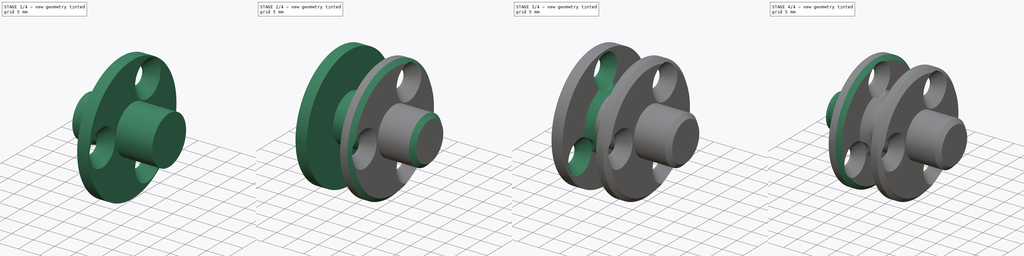
[diagram: build sequence overview — one tinted view per stage of 4, left to right]
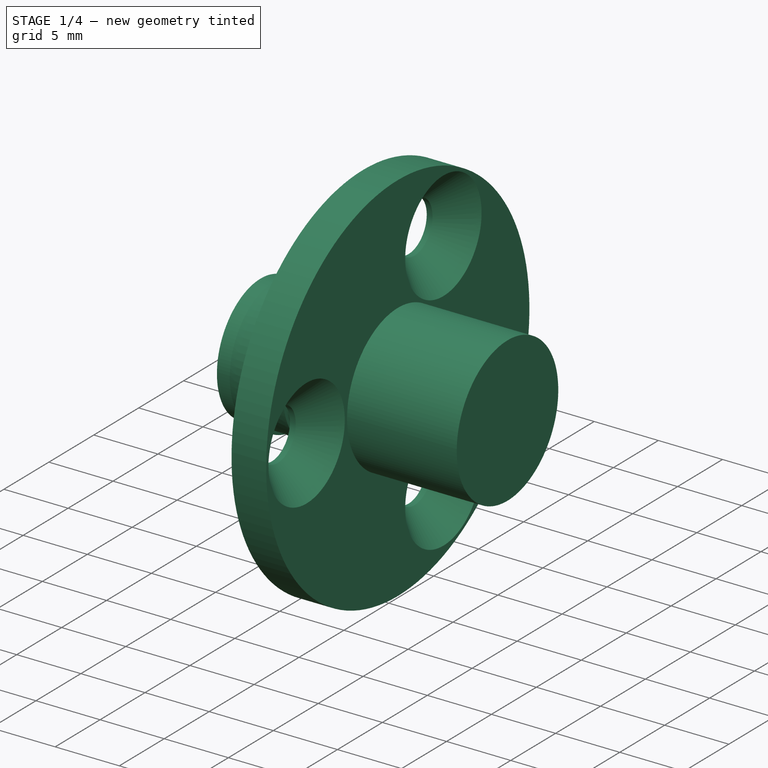
[diagram: stage 1 of 4 — iso view after this stage's code; geometry added in this stage tinted green]
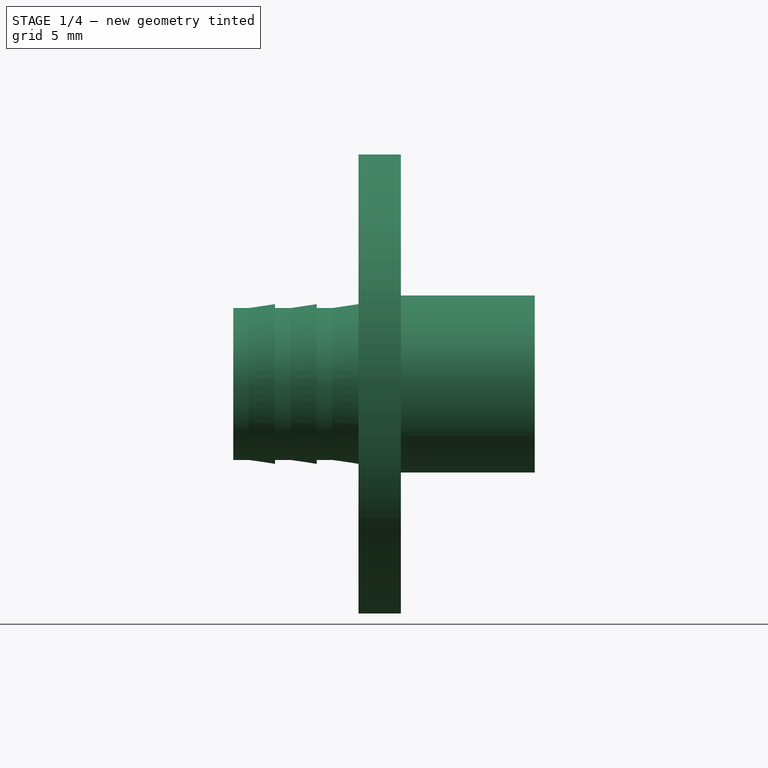
[diagram: stage 1 of 4 — front view after this stage's code; geometry added in this stage tinted green]
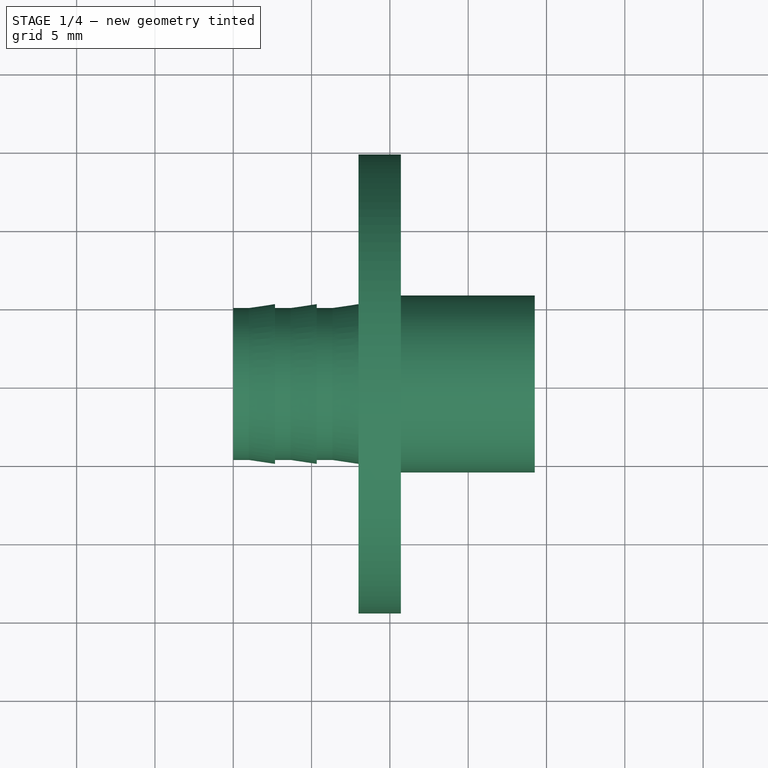
[diagram: stage 1 of 4 — top view after this stage's code; geometry added in this stage tinted green]
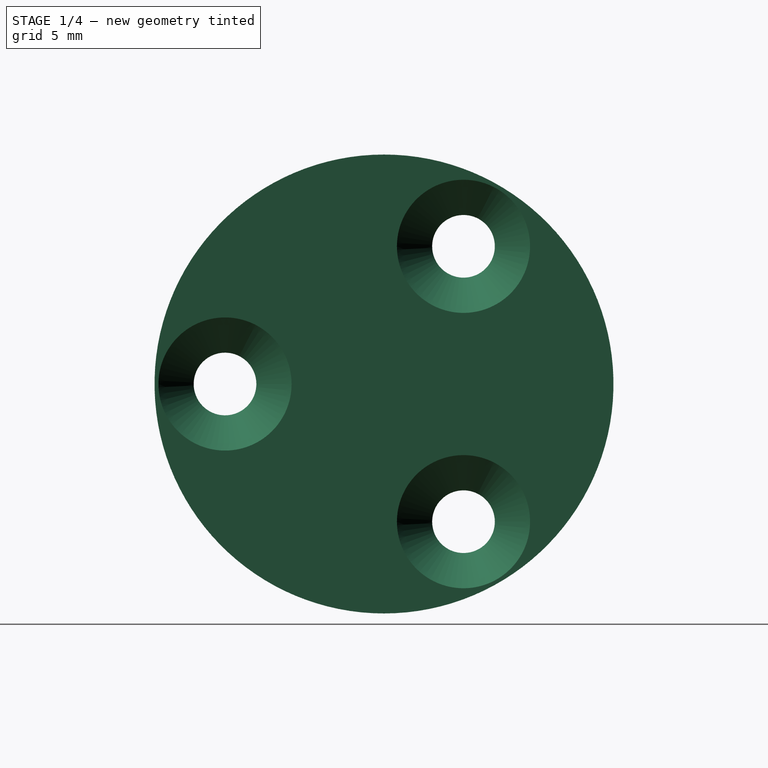
[diagram: stage 1 of 4 — right view after this stage's code; geometry added in this stage tinted green]
FCSTD DOCUMENT  (FreeCAD 0.20RUnknown)
Label: IkeaStopper
License: All rights reserved
LicenseURL: http://en.wikipedia.org/wiki/All_rights_reserved
objects: Sketcher::SketchObject×8, PartDesign::Revolution×3, PartDesign::Chamfer×3, PartDesign::Body×3, PartDesign::Hole×2, PartDesign::PolarPattern×2, PartDesign::Groove×2, PartDesign::Pocket×1
note: 35 computed .brp shape members not serialized (recipe doc carries the construction recipe); baked Part::Feature solids carry a one-line shape summary decoded from their .brp

FEATURE [Sketcher::SketchObject] Sketch
  FullyConstrained = true
  MapMode = 5
  Placement = pos=(0,0,0) rot=(1,0,0;1.5708rad)
  Support = -> [XZ_Plane]
  expr: Constraints[18] = 11.3 / 2
  expr: Constraints[20] = 10.2 / 2
  expr: Constraints[27] = 9.699999999999999 / 2
  sketch-geometry (19):
    g0: LineSegment StartX=0 StartY=5.1 StartZ=0 EndX=8 EndY=5.1 EndZ=0
    g1: LineSegment StartX=8 StartY=5.1 StartZ=0 EndX=8 EndY=14.65 EndZ=0
    g2: LineSegment StartX=8 StartY=14.65 StartZ=0 EndX=10.7 EndY=14.65 EndZ=0
    g3: LineSegment StartX=10.7 StartY=14.65 StartZ=0 EndX=10.7 EndY=5.65 EndZ=0
    g4: LineSegment StartX=10.7 StartY=5.65 StartZ=0 EndX=19.25 EndY=5.65 EndZ=0
    g5: LineSegment StartX=19.25 StartY=5.65 StartZ=0 EndX=19.25 EndY=0 EndZ=0
    g6: LineSegment StartX=0 StartY=0 StartZ=0 EndX=19.25 EndY=0 EndZ=0
    g7: LineSegment StartX=0 StartY=4.85 StartZ=0 EndX=8 EndY=4.85 EndZ=0
    g8: LineSegment StartX=8 StartY=5.1 StartZ=0 EndX=8 EndY=4.85 EndZ=0
    g9: LineSegment StartX=0 StartY=0 StartZ=0 EndX=0 EndY=4.85 EndZ=0
    g10: LineSegment StartX=0 StartY=4.85 StartZ=0 EndX=0 EndY=5.1 EndZ=0
    g11: LineSegment StartX=0 StartY=4.85 StartZ=0 EndX=1 EndY=4.85 EndZ=0
    g12: LineSegment StartX=1 StartY=4.85 StartZ=0 EndX=2.66667 EndY=5.1 EndZ=0
    g13: LineSegment StartX=2.66667 StartY=5.1 StartZ=0 EndX=2.66667 EndY=4.85 EndZ=0
    g14: LineSegment StartX=2.66667 StartY=4.85 StartZ=0 EndX=3.66667 EndY=4.85 EndZ=0
    g15: LineSegment StartX=3.66667 StartY=4.85 StartZ=0 EndX=5.33333 EndY=5.1 EndZ=0
    g16: LineSegment StartX=5.33333 StartY=5.1 StartZ=0 EndX=5.33333 EndY=4.85 EndZ=0
    g17: LineSegment StartX=5.33333 StartY=4.85 StartZ=0 EndX=6.33333 EndY=4.85 EndZ=0
    g18: LineSegment StartX=6.33333 StartY=4.85 StartZ=0 EndX=8 EndY=5.1 EndZ=0
  constraints (55):
    c: Coincident(g-1,g9)
    c: PointOnObject(g10,g-2)
    c: Coincident(g10,g0)
    c: Horizontal(g0)
    c: Coincident(g0,g1)
    c: Vertical(g1)
    c: Coincident(g1,g2)
    c: Coincident(g2,g3)
    c: Vertical(g3)
    c: Coincident(g3,g4)
    c: Horizontal(g4)
    c: Coincident(g4,g5)
    c: PointOnObject(g5,g-1)
    c: Vertical(g5)
    c: Coincident(g9,g6)
    c: Coincident(g6,g5)
    c: DistanceX(g2,g2) = 2.7
    c: DistanceX(g4,g4) = 8.55
    c: DistanceY(g5,g5) = 5.65
    c: Horizontal(g2)
    c: DistanceY(g9,g10) = 5.1
    c: DistanceX(g9,g0) = 8
    c: DistanceY(g3,g3) = 9
    c: Horizontal(g7)
    c: Coincident(g8,g0)
    c: Coincident(g8,g7)
    c: Vertical(g8)
    c: DistanceY(g9,g7) = 4.85
    c: Coincident(g9,g10)
    c: PointOnObject(g7,g10)
    c: PointOnObject(g9,g7)
    c: Coincident(g9,g11)
    c: Coincident(g11,g12)
    c: PointOnObject(g12,g0)
    c: Coincident(g12,g13)
    c: PointOnObject(g13,g7)
    c: Vertical(g13)
    c: Coincident(g13,g14)
    c: Coincident(g14,g15)
    c: PointOnObject(g15,g0)
    c: Coincident(g15,g16)
    c: PointOnObject(g16,g7)
    c: Vertical(g16)
    c: Coincident(g16,g17)
    c: Coincident(g17,g18)
    c: Coincident(g18,g1)
    c: Horizontal(g17)
    c: Horizontal(g14)
    c: Horizontal(g11)
    c: Equal(g11,g14)
    c: Equal(g14,g17)
    c: Equal(g18,g15)
    c: Equal(g15,g12)
    c: Vertical(g9)
    c: DistanceX(g11,g11) = 1
FEATURE [PartDesign::Revolution] Revolution
  Angle = 360
  Axis = (1,0,0)
  Base = (0,0,0)
  Placement = pos=(0,0,0) rot=(1,0,0;1.5708rad)
  Profile = -> Sketch
  ReferenceAxis = -> Sketch [H_Axis]
FEATURE [Sketcher::SketchObject] Sketch001
  ExternalGeometry = -> [Revolution]
  FullyConstrained = true
  MapMode = 5
  Placement = pos=(10.7,0,0) rot=(0.707107,0,0.707107;3.14159rad)
  Support = -> [Revolution]
  expr: Constraints[8] = 11.3 / 2 + 9 / 2
  sketch-geometry (3):
    g0: LineSegment StartX=0 StartY=4.85 StartZ=0 EndX=0 EndY=10.15 EndZ=0
    g1: LineSegment StartX=0 StartY=10.15 StartZ=0 EndX=0 EndY=15.45 EndZ=0
    g2: Circle CenterX=0 CenterY=10.15 CenterZ=0 NormalX=0 NormalY=0 NormalZ=1 AngleXU=0 Radius=2
  constraints (9):
    c: PointOnObject(g0,g-3)
    c: Vertical(g0)
    c: Coincident(g0,g1)
    c: Vertical(g1)
    c: PointOnObject(g0,g-2)
    c: Equal(g1,g0)
    c: Coincident(g2,g0)
    c: Diameter(g2) = 4
    c: DistanceY(g-3,g2) = 10.15
FEATURE [PartDesign::Hole] Hole
  BaseFeature = -> Revolution
  CustomThreadClearance = 0
  Depth = 92.1314
  DepthType = 1
  Diameter = 4
  DrillForDepth = false
  DrillPoint = 1
  DrillPointAngle = 118
  HoleCutCountersinkAngle = 90
  HoleCutCustomValues = false
  HoleCutDepth = 0
  HoleCutDiameter = 8.5
  HoleCutType = 2
  ModelThread = false
  Placement = pos=(0,0,0) rot=(1,0,0;1.5708rad)
  Profile = -> Sketch001
  Tapered = false
  TaperedAngle = 90
  ThreadClass = 0
  ThreadDepth = 92.1314
  ThreadDepthType = 0
  ThreadDirection = 0
  ThreadFit = 0
  ThreadSize = 0
  ThreadType = 0
  Threaded = false
  UseCustomThreadClearance = false
FEATURE [PartDesign::PolarPattern] PolarPattern
  Angle = 360
  Axis = -> Sketch001 [N_Axis]
  BaseFeature = -> Hole
  Occurrences = 3
  Originals = -> [Hole]
  Placement = pos=(0,0,0) rot=(1,0,0;1.5708rad)
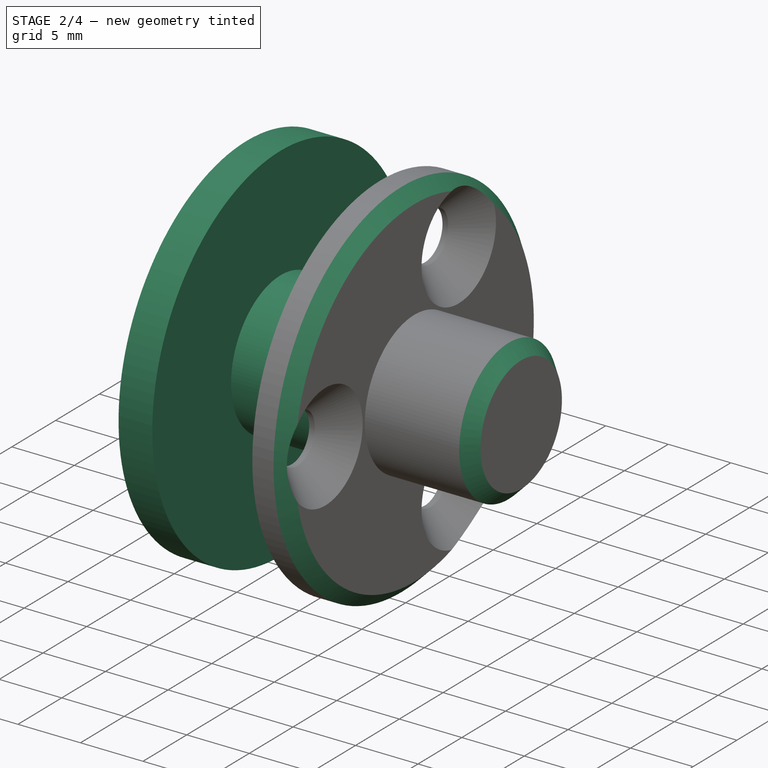
[diagram: stage 2 of 4 — iso view after this stage's code; geometry added in this stage tinted green]
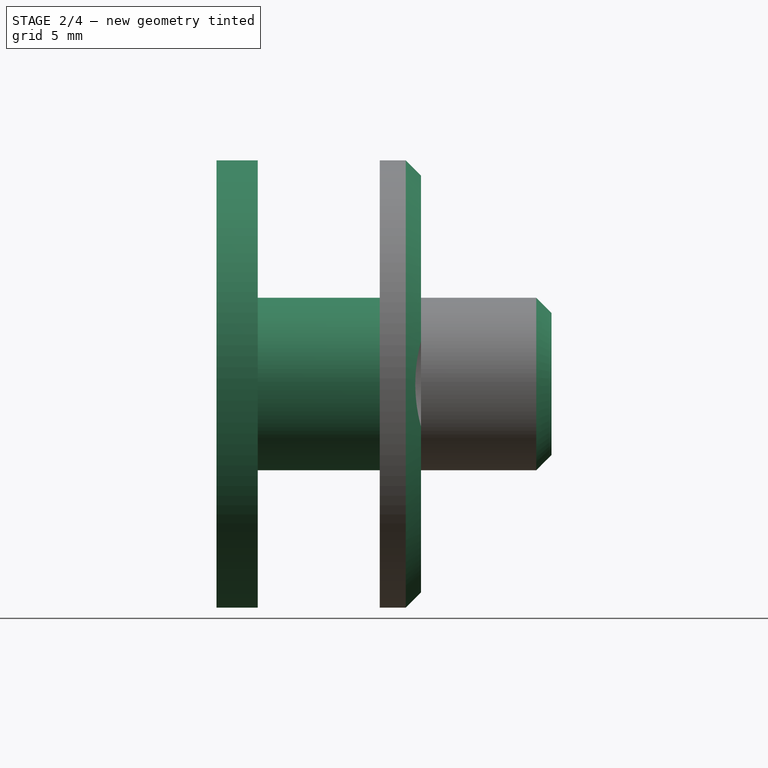
[diagram: stage 2 of 4 — front view after this stage's code; geometry added in this stage tinted green]
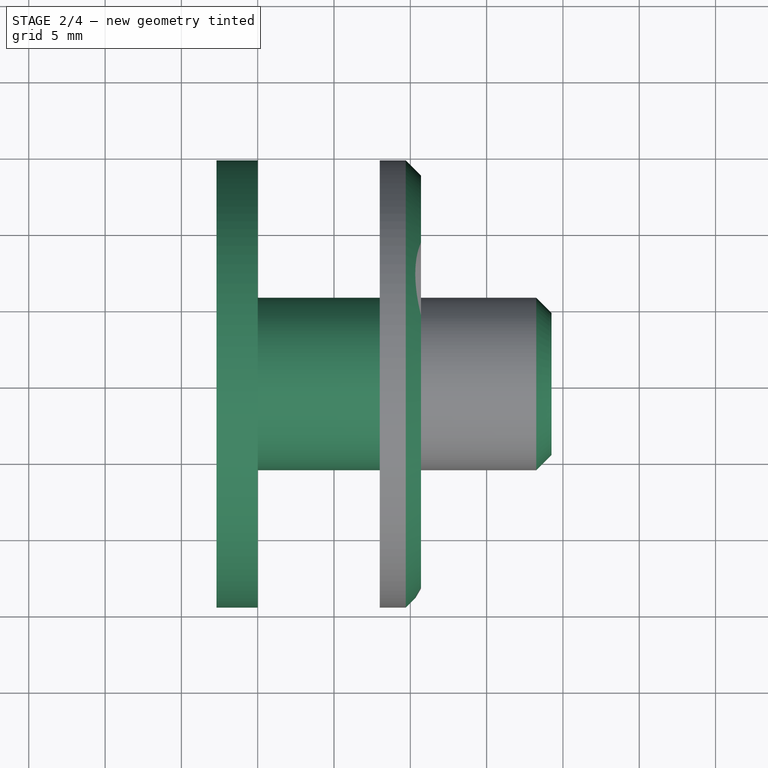
[diagram: stage 2 of 4 — top view after this stage's code; geometry added in this stage tinted green]
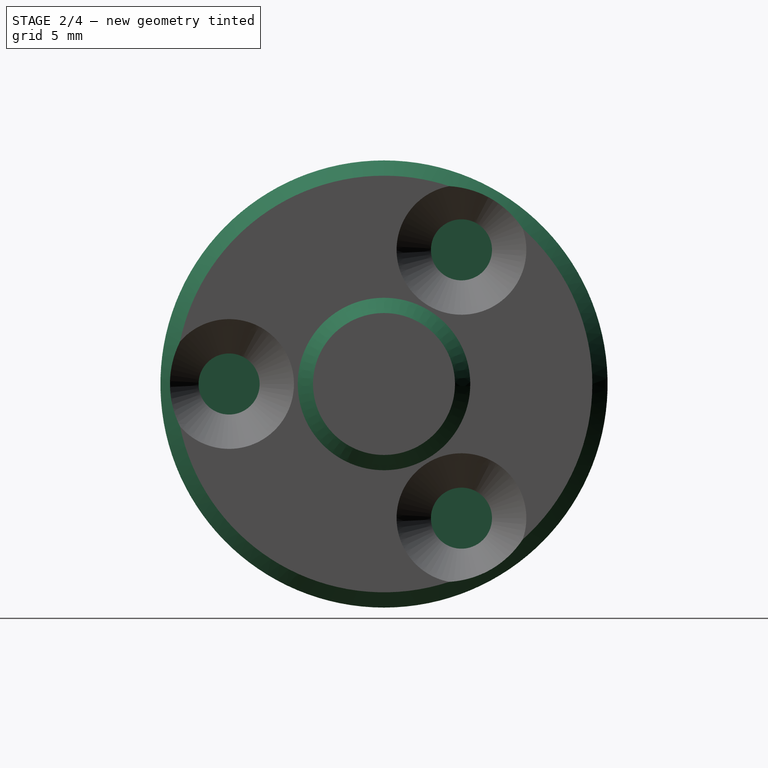
[diagram: stage 2 of 4 — right view after this stage's code; geometry added in this stage tinted green]
FEATURE [Sketcher::SketchObject] Sketch002
  FullyConstrained = true
  MapMode = 5
  Placement = pos=(0,0,0) rot=(1,0,0;1.5708rad)
  Support = -> [XZ_Plane001]
  expr: .Constraints.depth = 1.5 + 0.2
  expr: .Constraints.radius = 10.2 / 2 + 0 + 0.15
  expr: Constraints[16] = 11.3 / 2
  sketch-geometry (9):
    g0: LineSegment StartX=-2.7 StartY=14.65 StartZ=0 EndX=0 EndY=14.65 EndZ=0
    g1: LineSegment StartX=0 StartY=14.65 StartZ=0 EndX=0 EndY=5.65 EndZ=0
    g2: LineSegment StartX=0 StartY=5.65 StartZ=0 EndX=8.55 EndY=5.65 EndZ=0
    g3: LineSegment StartX=8.55 StartY=5.65 StartZ=0 EndX=8.55 EndY=0 EndZ=0
    g4: LineSegment StartX=8.55 StartY=0 StartZ=0 EndX=-1 EndY=0 EndZ=0
    g5: LineSegment StartX=-1 StartY=0 StartZ=0 EndX=-1 EndY=5.25 EndZ=0
    g6: LineSegment StartX=-1 StartY=5.25 StartZ=0 EndX=-2.7 EndY=5.25 EndZ=0
    g7: LineSegment StartX=-2.7 StartY=5.25 StartZ=0 EndX=-2.7 EndY=14.65 EndZ=0
    g8: LineSegment StartX=0 StartY=5.65 StartZ=0 EndX=-1 EndY=5.25 EndZ=0
  constraints (28):
    c: Horizontal(g0)
    c: Coincident(g0,g1)
    c: Vertical(g1)
    c: Coincident(g1,g2)
    c: Horizontal(g2)
    c: Coincident(g2,g3)
    c: PointOnObject(g3,g-1)
    c: Vertical(g3)
    c: Coincident(g3,g4)
    c: PointOnObject(g4,g-1)
    c: Coincident(g4,g5)
    c: Vertical(g5)
    c: Coincident(g5,g6)
    c: Horizontal(g6)
    c: Coincident(g6,g7)
    c: Coincident(g7,g0)
    c: DistanceY(g3,g3) = 5.65
    c: DistanceX(g2,g2) = 8.55
    c: DistanceX(g0,g0) = 2.7
    c: DistanceY(g1,g1) = 9
    c: Coincident(g8,g1)
    c: Coincident(g8,g5)
    c: Distance(g8) = 1.07703
    c: Vertical(g7)
    c: DistanceX(g6,g6) = 1.7  'depth'
    c: DistanceY(g5,g5) = 5.25  'radius'
    c: DistanceX(g5,g1) = 1
    c: PointOnObject(g0,g-2)
FEATURE [PartDesign::Revolution] Revolution001
  Angle = 360
  Axis = (1,0,0)
  Base = (0,0,0)
  Placement = pos=(0,0,0) rot=(1,0,0;1.5708rad)
  Profile = -> Sketch002
  ReferenceAxis = -> Sketch002 [H_Axis]
FEATURE [PartDesign::Body] Body001  label="Outer"
  Group = -> [Sketch002,Revolution001,Sketch003,Chamfer001,Hole001,Sketch004,Pocket,PolarPattern002,Sketch006,Groove,Chamfer002]
  Origin = -> Origin001
  Tip = -> Chamfer002
FEATURE [PartDesign::Chamfer] Chamfer
  Angle = 45
  Base = -> PolarPattern [Edge25]
  BaseFeature = -> PolarPattern
  ChamferType = 0
  FlipDirection = false
  Placement = pos=(0,0,0) rot=(1,0,0;1.5708rad)
  Size = 1
  Size2 = 1
  SupportTransform = false
  UseAllEdges = false
FEATURE [Sketcher::SketchObject] Sketch007
  ExternalGeometry = -> [Chamfer]
  FullyConstrained = true
  MapMode = 5
  Placement = pos=(0,0,0) rot=(1,0,0;1.5708rad)
  Support = -> [XZ_Plane]
  sketch-geometry (3):
    g0: LineSegment StartX=9.7 StartY=14.65 StartZ=0 EndX=10.7 EndY=13.65 EndZ=0
    g1: LineSegment StartX=10.7 StartY=13.65 StartZ=0 EndX=10.7 EndY=14.65 EndZ=0
    g2: LineSegment StartX=10.7 StartY=14.65 StartZ=0 EndX=9.7 EndY=14.65 EndZ=0
  constraints (8):
    c: Coincident(g0,g1)
    c: Vertical(g1)
    c: Coincident(g1,g2)
    c: Coincident(g2,g0)
    c: Equal(g2,g1)
    c: Horizontal(g2)
    c: DistanceY(g1,g1) = 1
    c: Coincident(g-3,g1)
FEATURE [PartDesign::Groove] Groove001
  Angle = 360
  Axis = (1,0,0)
  Base = (0,0,0)
  BaseFeature = -> Chamfer
  Placement = pos=(0,0,0) rot=(1,0,0;1.5708rad)
  Profile = -> Sketch007
  ReferenceAxis = -> Sketch007 [H_Axis]
  Reversed = true
FEATURE [PartDesign::Body] Body
  Group = -> [Sketch,Revolution,Sketch001,Hole,PolarPattern,Chamfer,Sketch007,Groove001]
  Origin = -> Origin
  Tip = -> Groove001
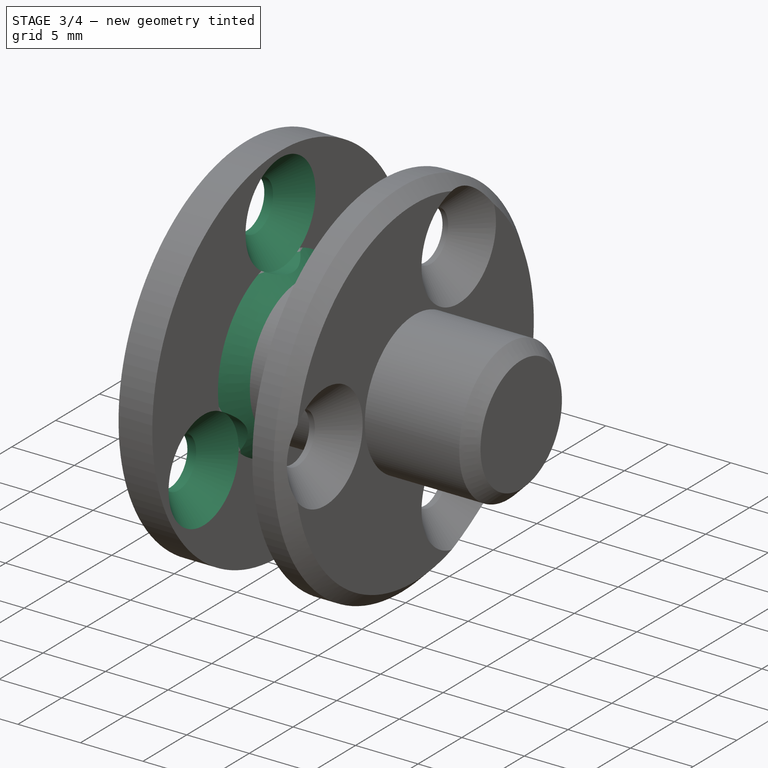
[diagram: stage 3 of 4 — iso view after this stage's code; geometry added in this stage tinted green]
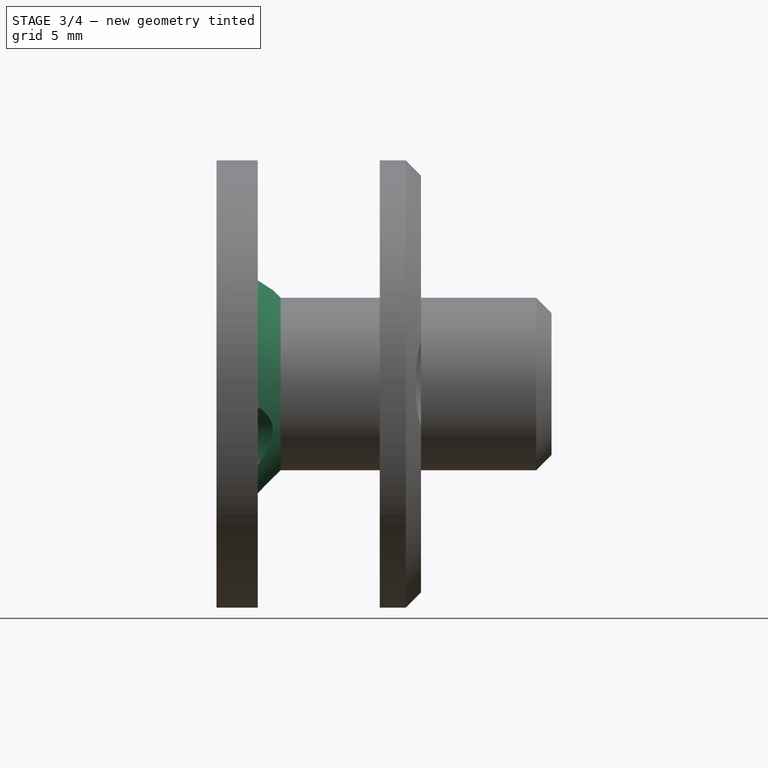
[diagram: stage 3 of 4 — front view after this stage's code; geometry added in this stage tinted green]
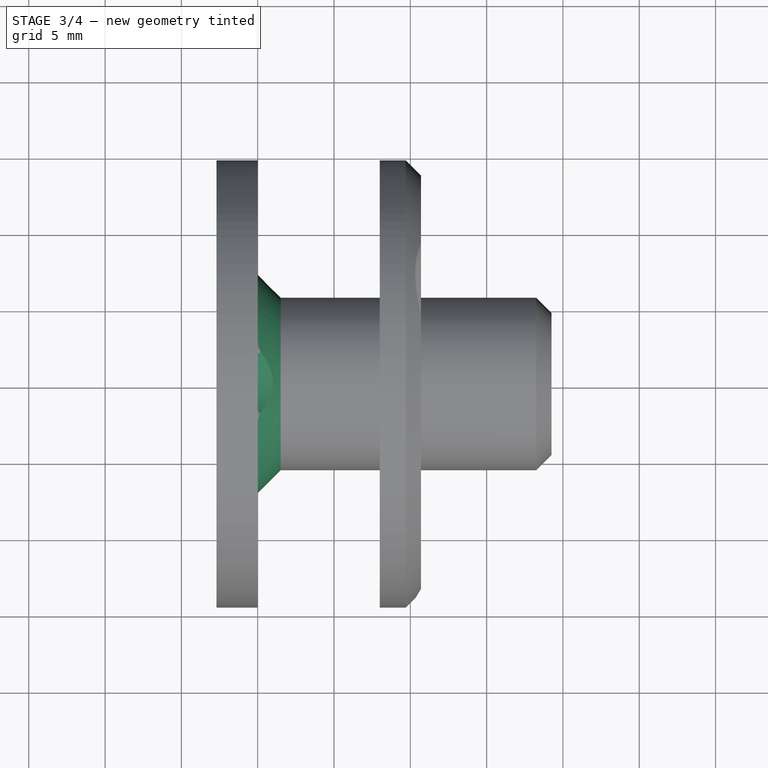
[diagram: stage 3 of 4 — top view after this stage's code; geometry added in this stage tinted green]
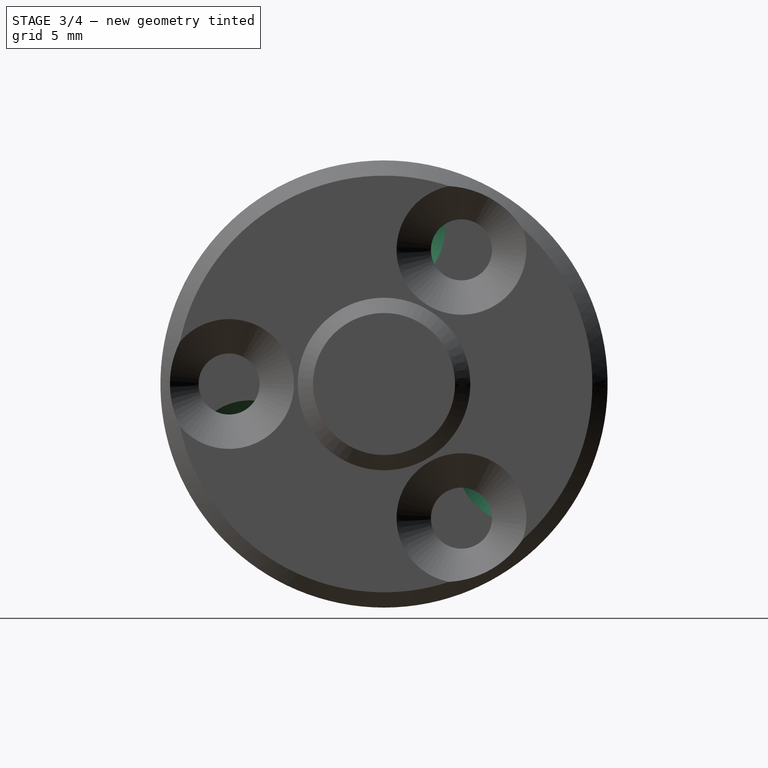
[diagram: stage 3 of 4 — right view after this stage's code; geometry added in this stage tinted green]
FEATURE [Sketcher::SketchObject] Sketch003
  FullyConstrained = true
  MapMode = 5
  Placement = pos=(0,0,0) rot=(0.57735,0.57735,0.57735;2.0944rad)
  Support = -> [YZ_Plane001]
  expr: Constraints[3] = 11.3 / 2 + 9 / 2
  sketch-geometry (2):
    g0: Circle CenterX=0 CenterY=10.15 CenterZ=0 NormalX=0 NormalY=0 NormalZ=1 AngleXU=0 Radius=2
    g1: LineSegment StartX=0 StartY=0 StartZ=0 EndX=0 EndY=10.15 EndZ=0
  constraints (5):
    c: PointOnObject(g0,g-2)
    c: Coincident(g1,g-1)
    c: Coincident(g1,g0)
    c: DistanceY(g1,g1) = 10.15
    c: Diameter(g0) = 4
FEATURE [PartDesign::Chamfer] Chamfer001
  Angle = 45
  Base = -> Revolution001 [Edge4]
  BaseFeature = -> Revolution001
  ChamferType = 0
  FlipDirection = false
  Placement = pos=(0,0,0) rot=(1,0,0;1.5708rad)
  Size = 1.5
  Size2 = 1
  SupportTransform = false
  UseAllEdges = false
FEATURE [PartDesign::Hole] Hole001
  BaseFeature = -> Chamfer001
  CustomThreadClearance = 0
  Depth = 86.7317
  DepthType = 0
  Diameter = 4
  DrillForDepth = false
  DrillPoint = 1
  DrillPointAngle = 118
  HoleCutCountersinkAngle = 90
  HoleCutCustomValues = false
  HoleCutDepth = 0
  HoleCutDiameter = 8
  HoleCutType = 2
  ModelThread = false
  Placement = pos=(0,0,0) rot=(1,0,0;1.5708rad)
  Profile = -> Sketch003
  Tapered = false
  TaperedAngle = 90
  ThreadClass = 0
  ThreadDepth = 86.7317
  ThreadDepthType = 0
  ThreadDirection = 0
  ThreadFit = 0
  ThreadSize = 0
  ThreadType = 0
  Threaded = false
  UseCustomThreadClearance = false
FEATURE [Sketcher::SketchObject] Sketch004
  FullyConstrained = false
  MapMode = 5
  Placement = pos=(0,0,0) rot=(0.57735,0.57735,0.57735;2.0944rad)
  Support = -> [YZ_Plane001]
  sketch-geometry (1):
    g0: Circle CenterX=0 CenterY=10.15 CenterZ=0 NormalX=0 NormalY=0 NormalZ=1 AngleXU=0 Radius=4
  constraints (1):
    c: Diameter(g0) = 8
FEATURE [PartDesign::Pocket] Pocket
  BaseFeature = -> Hole001
  Direction = (-1,2e-16,-3e-16)
  Length = 5
  Length2 = 5
  Placement = pos=(0,0,0) rot=(1,0,0;1.5708rad)
  Profile = -> Sketch004
  ReferenceAxis = -> Sketch004 [N_Axis]
  Reversed = true
  Type = 1
FEATURE [PartDesign::PolarPattern] PolarPattern002
  Angle = 360
  Axis = -> Sketch004 [N_Axis]
  BaseFeature = -> Pocket
  Occurrences = 3
  Originals = -> [Pocket,Hole001]
  Placement = pos=(0,0,0) rot=(1,0,0;1.5708rad)
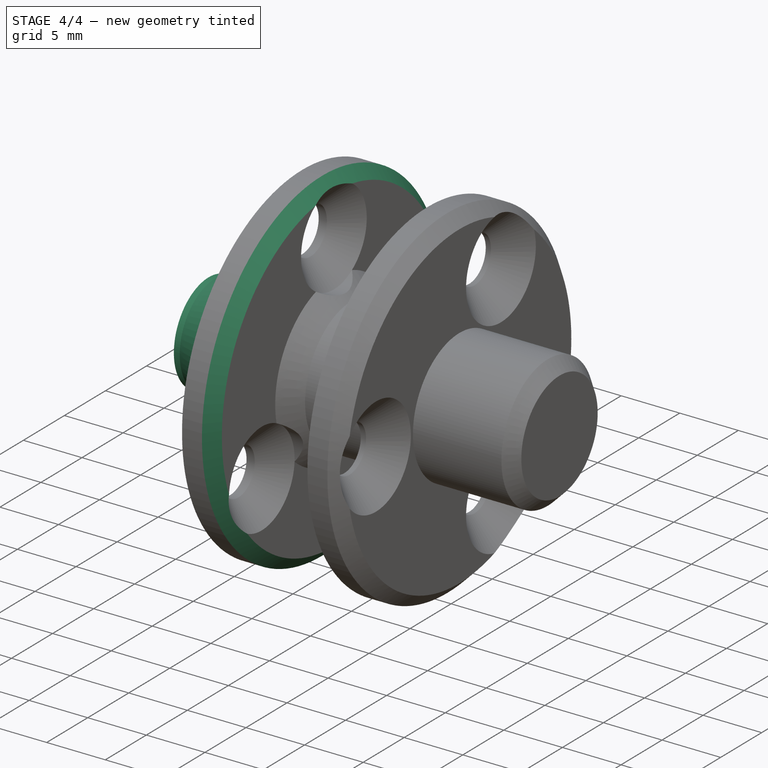
[diagram: stage 4 of 4 — iso view after this stage's code; geometry added in this stage tinted green]
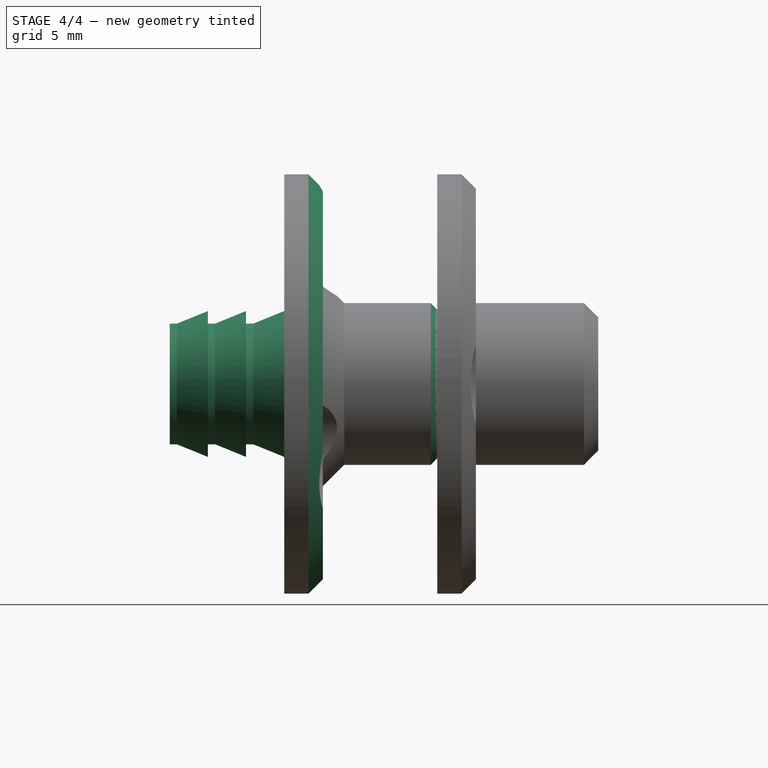
[diagram: stage 4 of 4 — front view after this stage's code; geometry added in this stage tinted green]
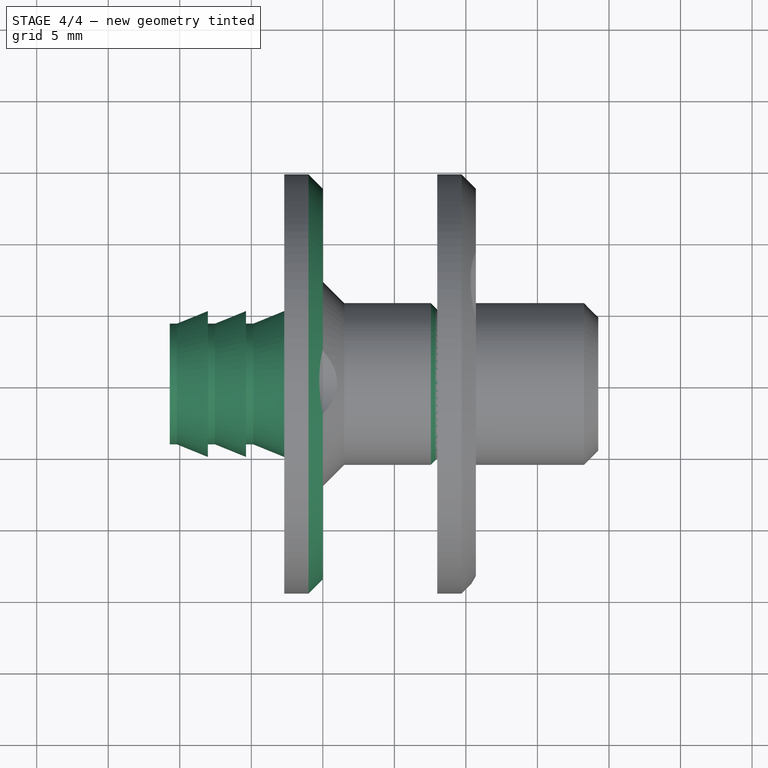
[diagram: stage 4 of 4 — top view after this stage's code; geometry added in this stage tinted green]
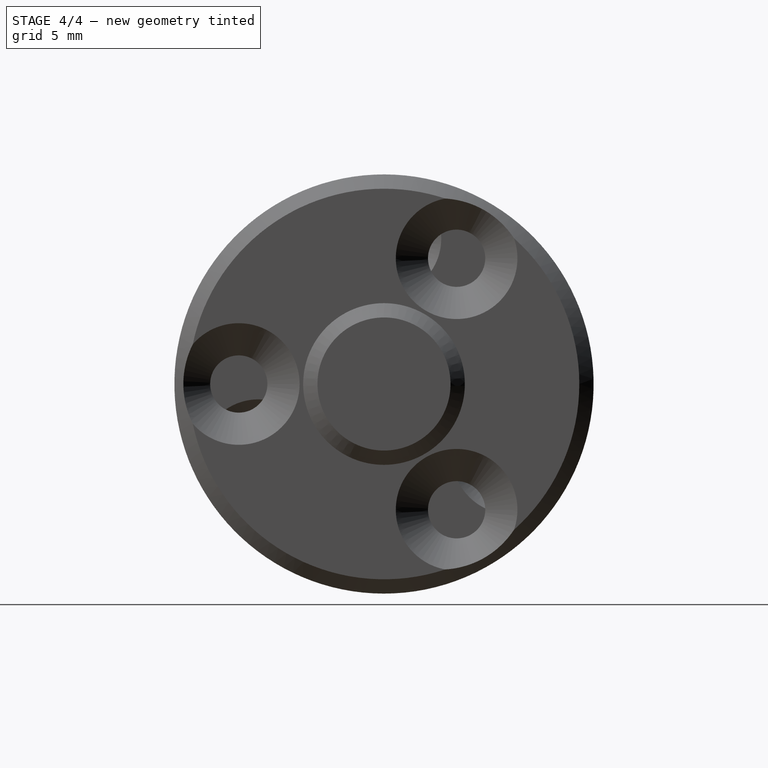
[diagram: stage 4 of 4 — right view after this stage's code; geometry added in this stage tinted green]
FEATURE [Sketcher::SketchObject] Sketch005
  FullyConstrained = true
  MapMode = 5
  Placement = pos=(0,0,0) rot=(1,0,0;1.5708rad)
  Support = -> [XZ_Plane002]
  expr: Constraints[18] = <<Sketch002>>.Constraints.depth - 0.2mm
  expr: Constraints[19] = <<Sketch002>>.Constraints.radius - 0.15mm
  expr: Constraints[22] = 9.699999999999999 / 2
  expr: Constraints[9] = 10.2 / 2
  sketch-geometry (18):
    g0: LineSegment StartX=-2.7 StartY=0 StartZ=0 EndX=-10.7 EndY=0 EndZ=0
    g1: LineSegment StartX=-10.7 StartY=5.1 StartZ=0 EndX=-2.7 EndY=5.1 EndZ=0
    g2: LineSegment StartX=-2.7 StartY=5.1 StartZ=0 EndX=-2.7 EndY=0 EndZ=0
    g3: LineSegment StartX=-1.2 StartY=0 StartZ=0 EndX=-2.7 EndY=0 EndZ=0
    g4: LineSegment StartX=-2.7 StartY=0 StartZ=0 EndX=-2.7 EndY=5.1 EndZ=0
    g5: LineSegment StartX=-2.7 StartY=5.1 StartZ=0 EndX=-1.2 EndY=5.1 EndZ=0
    g6: LineSegment StartX=-1.2 StartY=5.1 StartZ=0 EndX=-1.2 EndY=0 EndZ=0
    g7: LineSegment StartX=-2.7 StartY=4.21797 StartZ=0 EndX=-10.7 EndY=4.21797 EndZ=0
    g8: LineSegment StartX=-5.36667 StartY=4.21797 StartZ=0 EndX=-5.36667 EndY=5.1 EndZ=0
    g9: LineSegment StartX=-8.03333 StartY=4.21797 StartZ=0 EndX=-8.03333 EndY=5.1 EndZ=0
    g10: LineSegment StartX=-8.03333 StartY=5.1 StartZ=0 EndX=-10.2 EndY=4.21797 EndZ=0
    g11: LineSegment StartX=-10.2 StartY=4.21797 StartZ=0 EndX=-10.7 EndY=4.21797 EndZ=0
    g12: LineSegment StartX=-5.36667 StartY=5.1 StartZ=0 EndX=-7.53333 EndY=4.21797 EndZ=0
    g13: LineSegment StartX=-7.53333 StartY=4.21797 StartZ=0 EndX=-8.03333 EndY=4.21797 EndZ=0
    g14: LineSegment StartX=-2.7 StartY=5.1 StartZ=0 EndX=-4.86667 EndY=4.21797 EndZ=0
    g15: LineSegment StartX=-4.86667 StartY=4.21797 StartZ=0 EndX=-5.36667 EndY=4.21797 EndZ=0
    g16: LineSegment StartX=-10.7 StartY=0 StartZ=0 EndX=-10.7 EndY=4.21797 EndZ=0
    g17: LineSegment StartX=-10.7 StartY=4.21797 StartZ=0 EndX=-10.7 EndY=5.1 EndZ=0
  constraints (55):
    c: Coincident(g0,g16)
    c: Coincident(g17,g1)
    c: Coincident(g1,g2)
    c: Coincident(g2,g0)
    c: Horizontal(g0)
    c: Horizontal(g1)
    c: Vertical(g2)
    c: PointOnObject(g0,g-1)
    c: DistanceX(g1,g1) = 8
    c: DistanceY(g16,g17) = 5.1
    c: Coincident(g3,g4)
    c: Coincident(g4,g5)
    c: Coincident(g5,g6)
    c: Coincident(g6,g3)
    c: Horizontal(g3)
    c: Horizontal(g5)
    c: Vertical(g4)
    c: Vertical(g6)
    c: DistanceX(g5,g5) = 1.5
    c: DistanceY(g6,g6) = 5.1
    c: DistanceX(g1,g4) = 0
    c: Horizontal(g7)
    c: DistanceY(g0,g7) = 4.21797
    c: PointOnObject(g14,g1)
    c: PointOnObject(g15,g7)
    c: Coincident(g15,g8)
    c: PointOnObject(g8,g1)
    c: Vertical(g8)
    c: Coincident(g8,g12)
    c: PointOnObject(g13,g7)
    c: Coincident(g13,g9)
    c: PointOnObject(g9,g1)
    c: Vertical(g9)
    c: Coincident(g9,g10)
    c: PointOnObject(g10,g7)
    c: Coincident(g10,g11)
    c: Coincident(g11,g7)
    c: Coincident(g12,g13)
    c: Coincident(g14,g15)
    c: Horizontal(g13)
    c: Horizontal(g15)
    c: Equal(g14,g12)
    c: Equal(g12,g10)
    c: Equal(g11,g13)
    c: Equal(g13,g15)
    c: DistanceX(g11,g11) = 0.5
    c: Coincident(g16,g17)
    c: Vertical(g16)
    c: Vertical(g17)
    c: PointOnObject(g7,g17)
    c: PointOnObject(g16,g7)
    c: PointOnObject(g14,g2)
    c: PointOnObject(g7,g2)
    c: PointOnObject(g3,g-1)
    c: DistanceX(g0,g-1) = 2.7
FEATURE [PartDesign::Revolution] Revolution002
  Angle = 360
  Axis = (1,0,0)
  Base = (0,0,0)
  Placement = pos=(0,0,0) rot=(1,0,0;1.5708rad)
  Profile = -> Sketch005
  ReferenceAxis = -> Sketch005 [H_Axis]
FEATURE [PartDesign::Body] Body002  label="Inner"
  Group = -> [Sketch005,Revolution002]
  Origin = -> Origin002
  Tip = -> Revolution002
FEATURE [Sketcher::SketchObject] Sketch006
  ExternalGeometry = -> [Sketch002]
  FullyConstrained = true
  MapMode = 5
  Placement = pos=(0,0,0) rot=(1,0,0;1.5708rad)
  Support = -> [XZ_Plane001]
  sketch-geometry (3):
    g0: LineSegment StartX=-1 StartY=14.65 StartZ=0 EndX=1e-16 EndY=14.65 EndZ=0
    g1: LineSegment StartX=1e-16 StartY=14.65 StartZ=0 EndX=1e-16 EndY=13.65 EndZ=0
    g2: LineSegment StartX=1e-16 StartY=13.65 StartZ=0 EndX=-1 EndY=14.65 EndZ=0
  constraints (8):
    c: Horizontal(g0)
    c: Coincident(g0,g1)
    c: Vertical(g1)
    c: Coincident(g1,g2)
    c: Coincident(g2,g0)
    c: Equal(g0,g1)
    c: DistanceY(g1,g1) = 1
    c: Coincident(g0,g-3)
FEATURE [PartDesign::Groove] Groove
  Angle = 360
  Axis = (1,0,0)
  Base = (0,0,0)
  BaseFeature = -> PolarPattern002
  Placement = pos=(0,0,0) rot=(1,0,0;1.5708rad)
  Profile = -> Sketch006
  ReferenceAxis = -> Sketch006 [H_Axis]
  Reversed = true
FEATURE [PartDesign::Chamfer] Chamfer002
  Angle = 45
  Base = -> Groove [Edge32]
  BaseFeature = -> Groove
  ChamferType = 0
  FlipDirection = false
  Placement = pos=(0,0,0) rot=(1,0,0;1.5708rad)
  Size = 1
  Size2 = 1
  SupportTransform = false
  UseAllEdges = false
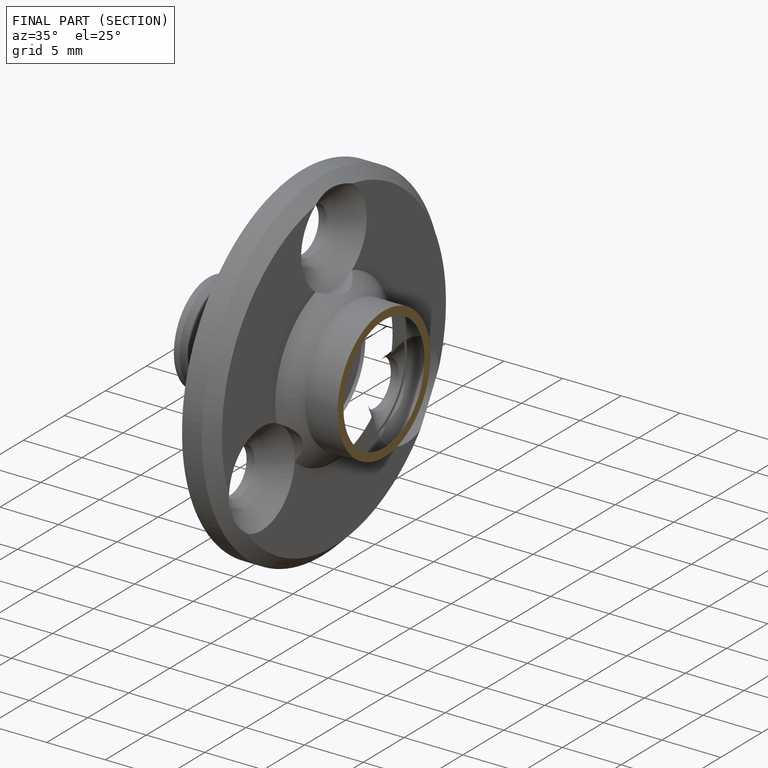
[diagram: finished part — half-section view (interior)]
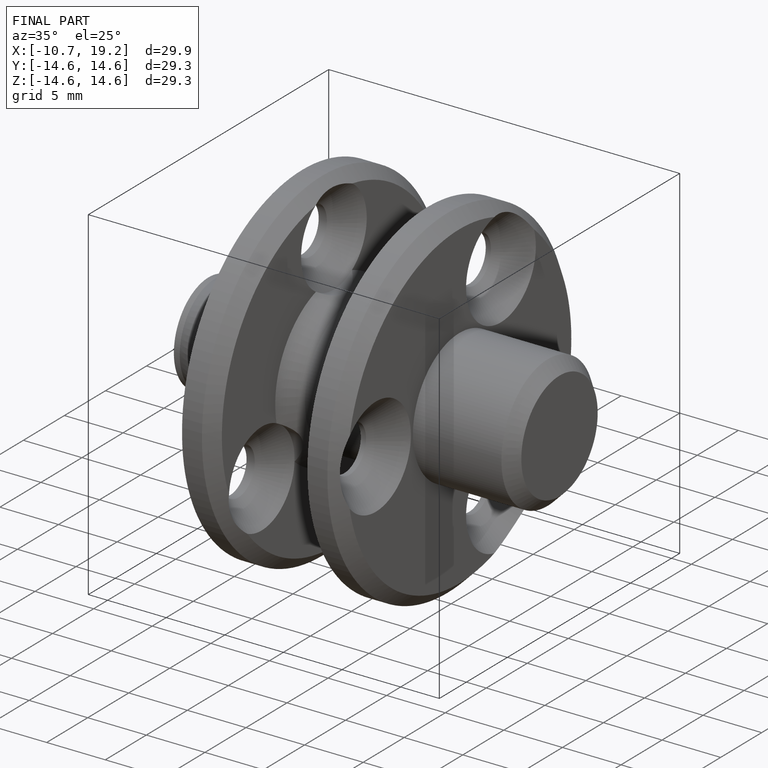
[diagram: finished part — iso view with bounding-box wireframe]
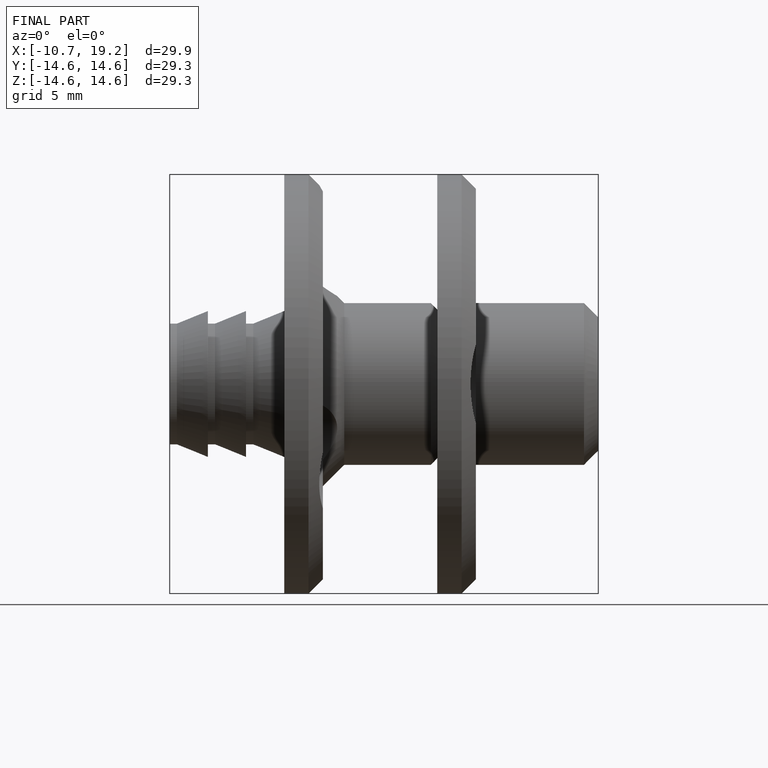
[diagram: finished part — front view with bounding-box wireframe]
